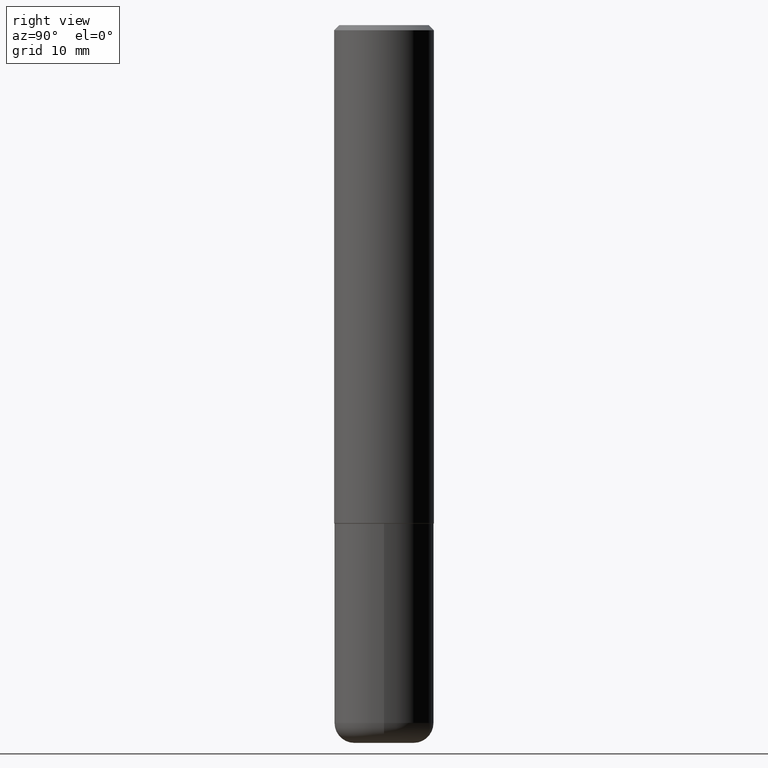
[diagram: clean part render]
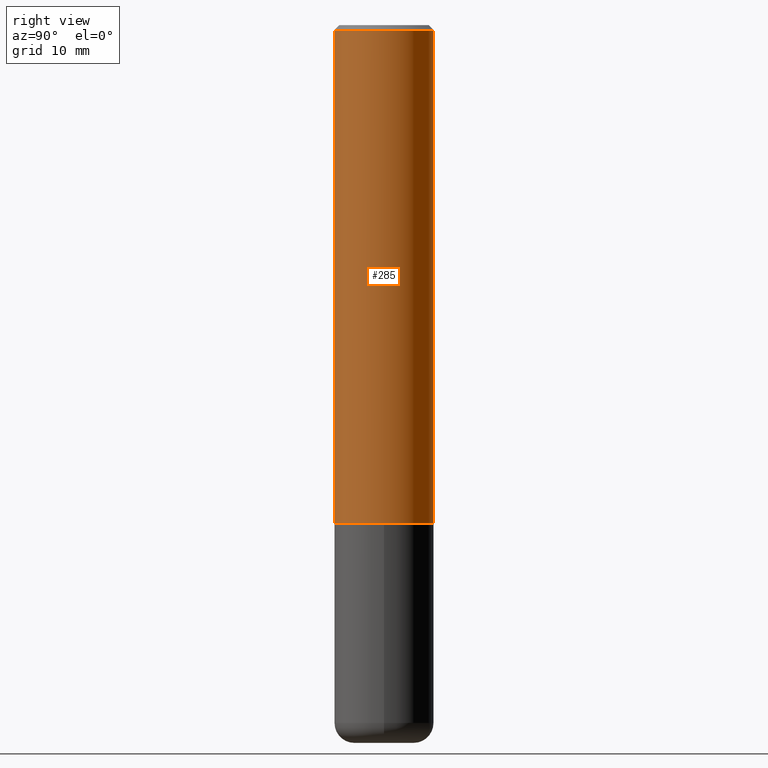
[diagram: same view with one face highlighted and labeled with its STEP entity id]
A machine part, right view. The second image highlights one B-rep face of the part: STEP entity #285.
In plain terms, the highlighted cylindrical surface (partial cylindrical patch) has radius 5 mm, axis along (-0, 0, 1).
Its self-contained STEP definition (entity closure, byte-faithful):
#19 = ORIENTED_EDGE ( 'NONE', *, *, #337, .F. ) ;
#32 = CARTESIAN_POINT ( 'NONE',  ( 1.398703375343782834E-15, 0.1968499999999934191, -1.967500000000000471 ) ) ;
#48 = AXIS2_PLACEMENT_3D ( 'NONE', #350, #254, #229 ) ;
#93 = CARTESIAN_POINT ( 'NONE',  ( 4.812369479438847265E-29, -6.868186930520428742E-15, -1.967499999999999805 ) ) ;
#110 = ORIENTED_EDGE ( 'NONE', *, *, #249, .F. ) ;
#113 = ORIENTED_EDGE ( 'NONE', *, *, #367, .T. ) ;
#129 = CARTESIAN_POINT ( 'NONE',  ( -1.374596203102495065E-15, -0.1968500000000071026, -1.967499999999998916 ) ) ;
#135 = VERTEX_POINT ( 'NONE', #373 ) ;
#136 = CARTESIAN_POINT ( 'NONE',  ( 4.891862240852715644E-31, -6.981638557072878903E-17, -0.02000000000000004205 ) ) ;
#138 = VECTOR ( 'NONE', #257, 39.37007874015748143 ) ;
#161 = CARTESIAN_POINT ( 'NONE',  ( -1.374596203102542200E-15, -0.1968500000000001082, 6.871677749798970513E-16 ) ) ;
#170 = DIRECTION ( 'NONE',  ( -6.982962677686265922E-15, -1.000000000000000000, 4.163344669033670112E-15 ) ) ;
#192 = DIRECTION ( 'NONE',  ( -6.982962677686265133E-15, -1.000000000000000000, 3.491137977679279424E-15 ) ) ;
#195 = LINE ( 'NONE', #161, #281 ) ;
#206 = ORIENTED_EDGE ( 'NONE', *, *, #399, .T. ) ;
#223 = CIRCLE ( 'NONE', #240, 0.1968500000000000250 ) ;
#229 = DIRECTION ( 'NONE',  ( -6.982962677686265922E-15, -1.000000000000000000, 3.490819278536432204E-15 ) ) ;
#233 = FACE_OUTER_BOUND ( 'NONE', #376, .T. ) ;
#235 = DIRECTION ( 'NONE',  ( -2.445931120426352427E-29, 3.490819278536432204E-15, 1.000000000000000000 ) ) ;
#240 = AXIS2_PLACEMENT_3D ( 'NONE', #136, #356, #192 ) ;
#249 = EDGE_CURVE ( 'NONE', #135, #362, #223, .T. ) ;
#254 = DIRECTION ( 'NONE',  ( -2.445931120426352427E-29, 3.490819278536432204E-15, 1.000000000000000000 ) ) ;
#257 = DIRECTION ( 'NONE',  ( -2.445931120426352427E-29, 3.490819278536432204E-15, 1.000000000000000000 ) ) ;
#258 = CARTESIAN_POINT ( 'NONE',  ( 1.374596203102542003E-15, 0.1968499999999999417, -0.02000000000000072900 ) ) ;
#260 = CYLINDRICAL_SURFACE ( 'NONE', #48, 0.1968500000000001082 ) ;
#277 = VERTEX_POINT ( 'NONE', #129 ) ;
#281 = VECTOR ( 'NONE', #389, 39.37007874015748143 ) ;
#285 = ADVANCED_FACE ( 'NONE', ( #233 ), #260, .T. ) ;
#337 = EDGE_CURVE ( 'NONE', #277, #135, #195, .T. ) ;
#341 = VERTEX_POINT ( 'NONE', #32 ) ;
#350 = CARTESIAN_POINT ( 'NONE',  ( 0.000000000000000000, 0.000000000000000000, 0.000000000000000000 ) ) ;
#356 = DIRECTION ( 'NONE',  ( -2.445931120426352427E-29, 3.490819278536432204E-15, 1.000000000000000000 ) ) ;
#362 = VERTEX_POINT ( 'NONE', #258 ) ;
#367 = EDGE_CURVE ( 'NONE', #341, #362, #383, .T. ) ;
#373 = CARTESIAN_POINT ( 'NONE',  ( -1.350489030861325429E-15, -0.1968500000000000805, -0.01999999999999935510 ) ) ;
#376 = EDGE_LOOP ( 'NONE', ( #206, #113, #110, #19 ) ) ;
#380 = AXIS2_PLACEMENT_3D ( 'NONE', #93, #235, #170 ) ;
#383 = LINE ( 'NONE', #412, #138 ) ;
#389 = DIRECTION ( 'NONE',  ( -2.445931120426352427E-29, 3.490819278536432204E-15, 1.000000000000000000 ) ) ;
#399 = EDGE_CURVE ( 'NONE', #277, #341, #406, .T. ) ;
#406 = CIRCLE ( 'NONE', #380, 0.1968500000000002470 ) ;
#412 = CARTESIAN_POINT ( 'NONE',  ( 1.398703375343757788E-15, 0.1968500000000001082, -6.871677749798970513E-16 ) ) ;